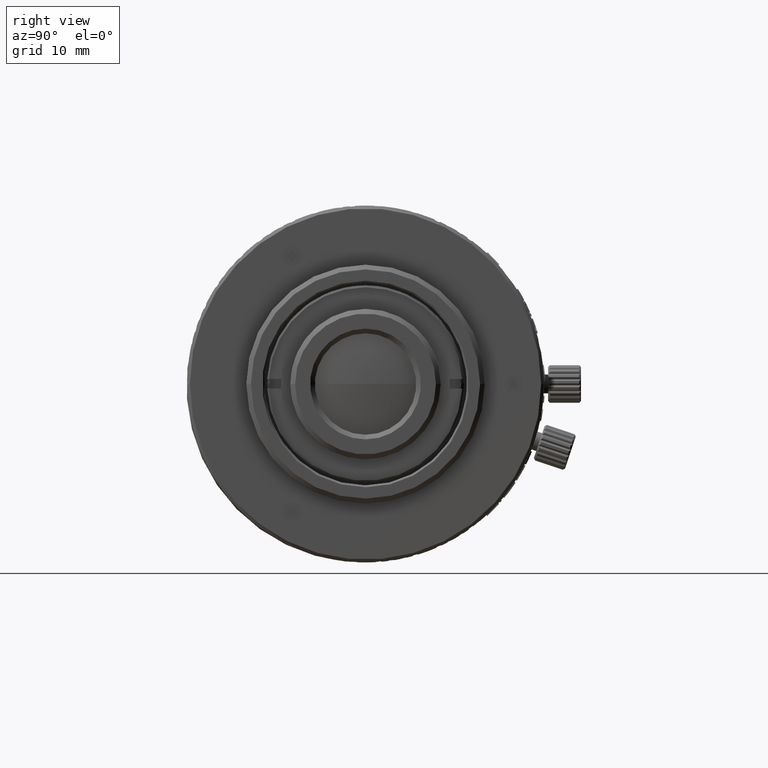
[diagram: clean part render]
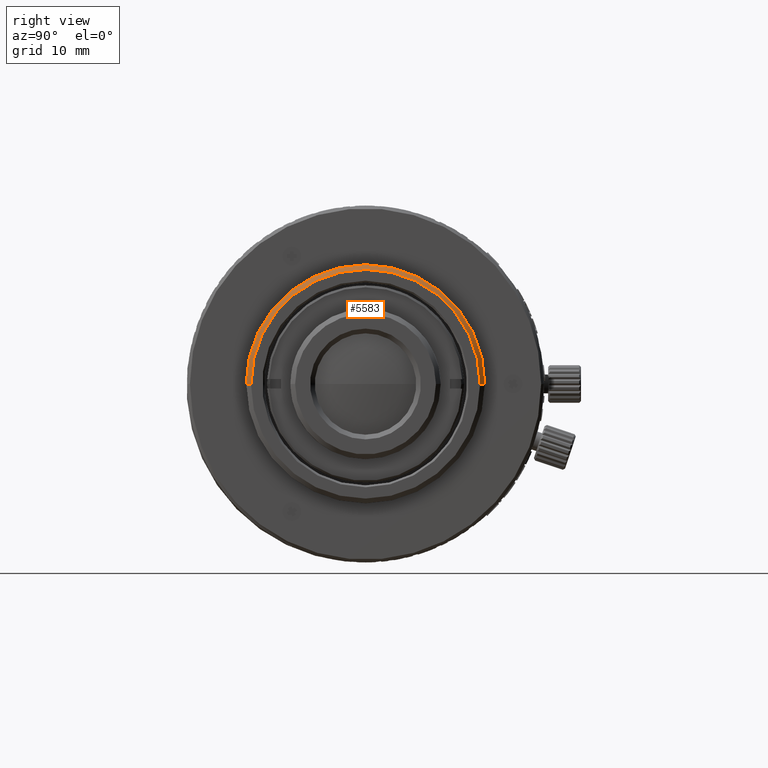
[diagram: same view with one face highlighted and labeled with its STEP entity id]
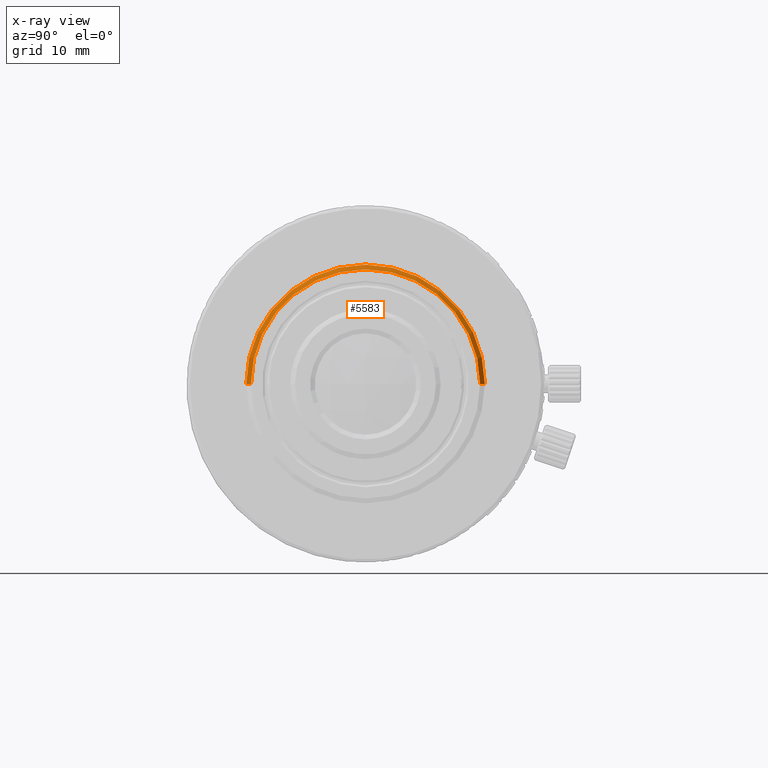
[diagram: x-ray of the same camera — body ghosted, the highlighted face saturated]
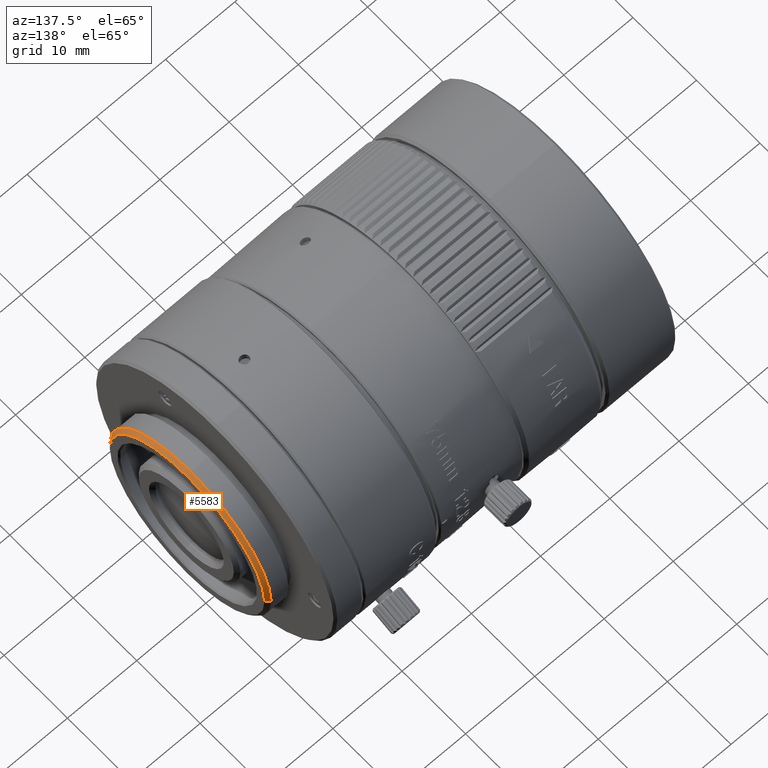
[diagram: same view with one face highlighted and labeled with its STEP entity id]
A machine part, right view. The second image highlights one B-rep face of the part: STEP entity #5583.
The next image is the same camera in x-ray: the body ghosted, the highlighted face saturated — about 0% of this face is hidden behind the body in this view.
A second angle (auxiliary view) of the same face is appended — the face is thin or edge-on in the first view.
In plain terms, the highlighted conical surface has half-angle 45 deg.
Its self-contained STEP definition (entity closure, byte-faithful):
#1034 = VERTEX_POINT ( 'NONE', #50143 ) ;
#1388 = DIRECTION ( 'NONE',  ( -1.000000000000000000, -1.365923996832346081E-16, -0.000000000000000000 ) ) ;
#3106 = VERTEX_POINT ( 'NONE', #40139 ) ;
#3587 = ORIENTED_EDGE ( 'NONE', *, *, #43886, .T. ) ;
#5307 = CARTESIAN_POINT ( 'NONE',  ( 31.10667233491064820, 18.80004786563999986, -18.90000000000000213 ) ) ;
#5583 = ADVANCED_FACE ( 'NONE', ( #9777 ), #31652, .T. ) ;
#5866 = CARTESIAN_POINT ( 'NONE',  ( 31.60666666667000158, 18.80004786563999986, -18.90000000000000213 ) ) ;
#9777 = FACE_OUTER_BOUND ( 'NONE', #35715, .T. ) ;
#14050 = DIRECTION ( 'NONE',  ( -1.000000000000000000, 0.000000000000000000, -0.000000000000000000 ) ) ;
#15309 = LINE ( 'NONE', #54278, #39010 ) ;
#16325 = CARTESIAN_POINT ( 'NONE',  ( 31.10667233491064820, 31.50004786563800963, -18.90000000000000213 ) ) ;
#20889 = EDGE_CURVE ( 'NONE', #55279, #21422, #26497, .T. ) ;
#21149 = EDGE_CURVE ( 'NONE', #55279, #1034, #15309, .T. ) ;
#21422 = VERTEX_POINT ( 'NONE', #51451 ) ;
#25285 = DIRECTION ( 'NONE',  ( 0.000000000000000000, 0.000000000000000000, -1.000000000000000000 ) ) ;
#25421 = CIRCLE ( 'NONE', #29913, 12.69999999999800089 ) ;
#25566 = AXIS2_PLACEMENT_3D ( 'NONE', #5866, #1388, #43163 ) ;
#26140 = DIRECTION ( 'NONE',  ( 0.000000000000000000, 8.195543980994079443E-16, -1.000000000000000000 ) ) ;
#26287 = AXIS2_PLACEMENT_3D ( 'NONE', #5307, #39796, #39246 ) ;
#26497 = CIRCLE ( 'NONE', #25566, 12.20000544508100404 ) ;
#27792 = VECTOR ( 'NONE', #28698, 1000.000000000000000 ) ;
#28655 = CARTESIAN_POINT ( 'NONE',  ( 31.10667233491065176, 18.80004786563999986, -18.90000000000000213 ) ) ;
#28698 = DIRECTION ( 'NONE',  ( -0.7071066233884897301, 0.7071069389845701103, 8.659562494823366882E-17 ) ) ;
#28782 = DIRECTION ( 'NONE',  ( -0.7071066233884895080, -0.7071069389845703324, 0.000000000000000000 ) ) ;
#29740 = VERTEX_POINT ( 'NONE', #45111 ) ;
#29913 = AXIS2_PLACEMENT_3D ( 'NONE', #28655, #41262, #25285 ) ;
#31652 = CONICAL_SURFACE ( 'NONE', #26287, 12.69999999999800622, 0.7853983865575769885 ) ;
#35381 = CARTESIAN_POINT ( 'NONE',  ( 31.10667233491065176, 18.80004786563999986, -18.90000000000000213 ) ) ;
#35715 = EDGE_LOOP ( 'NONE', ( #40566, #3587, #45438, #46769, #39720 ) ) ;
#39010 = VECTOR ( 'NONE', #28782, 1000.000000000000000 ) ;
#39246 = DIRECTION ( 'NONE',  ( 0.000000000000000000, -1.000000000000000000, 0.000000000000000000 ) ) ;
#39720 = ORIENTED_EDGE ( 'NONE', *, *, #21149, .F. ) ;
#39796 = DIRECTION ( 'NONE',  ( -1.000000000000000000, -1.365923996832346081E-16, -0.000000000000000000 ) ) ;
#40139 = CARTESIAN_POINT ( 'NONE',  ( 31.10667233491065176, 31.50004786563800963, -18.90000000000000213 ) ) ;
#40298 = CARTESIAN_POINT ( 'NONE',  ( 31.60666666667000158, 6.600042420558997591, -18.90000000000000213 ) ) ;
#40422 = CIRCLE ( 'NONE', #49369, 12.69999999999800089 ) ;
#40566 = ORIENTED_EDGE ( 'NONE', *, *, #20889, .T. ) ;
#41262 = DIRECTION ( 'NONE',  ( -1.000000000000000000, 0.000000000000000000, -0.000000000000000000 ) ) ;
#43163 = DIRECTION ( 'NONE',  ( 0.000000000000000000, -1.000000000000000000, 0.000000000000000000 ) ) ;
#43886 = EDGE_CURVE ( 'NONE', #21422, #3106, #46071, .T. ) ;
#45111 = CARTESIAN_POINT ( 'NONE',  ( 31.10667233491065176, 18.80004786563999986, -6.200000000002002132 ) ) ;
#45438 = ORIENTED_EDGE ( 'NONE', *, *, #51642, .F. ) ;
#45813 = EDGE_CURVE ( 'NONE', #1034, #29740, #40422, .T. ) ;
#46071 = LINE ( 'NONE', #16325, #27792 ) ;
#46769 = ORIENTED_EDGE ( 'NONE', *, *, #45813, .F. ) ;
#49369 = AXIS2_PLACEMENT_3D ( 'NONE', #35381, #14050, #26140 ) ;
#50143 = CARTESIAN_POINT ( 'NONE',  ( 31.10667233491065176, 6.100047865641998079, -18.90000000000000213 ) ) ;
#51451 = CARTESIAN_POINT ( 'NONE',  ( 31.60666666667000158, 31.00005331072100390, -18.90000000000000213 ) ) ;
#51642 = EDGE_CURVE ( 'NONE', #29740, #3106, #25421, .T. ) ;
#54278 = CARTESIAN_POINT ( 'NONE',  ( 31.10667233491064820, 6.100047865641994527, -18.90000000000000213 ) ) ;
#55279 = VERTEX_POINT ( 'NONE', #40298 ) ;